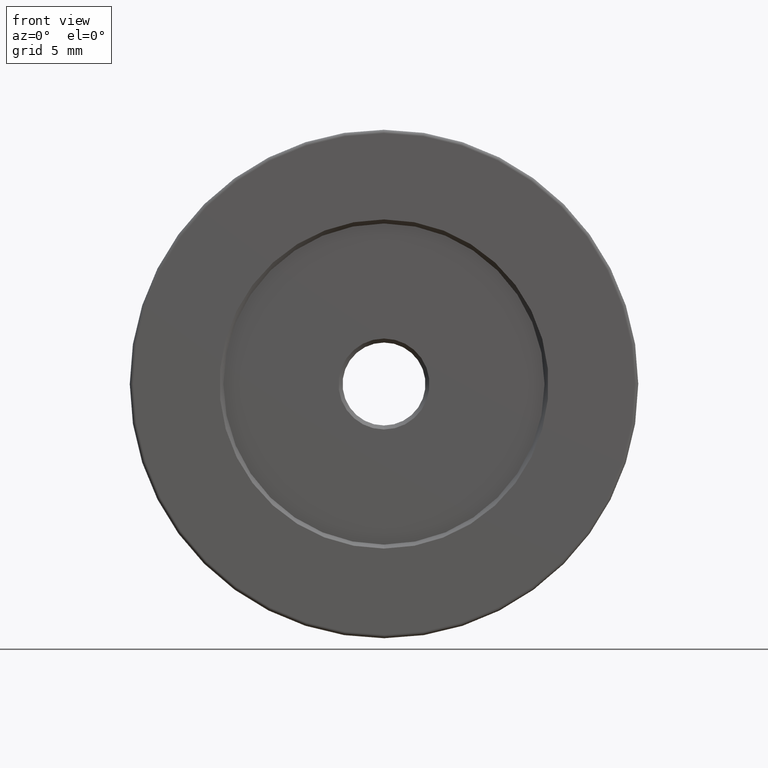
[diagram: clean part render]
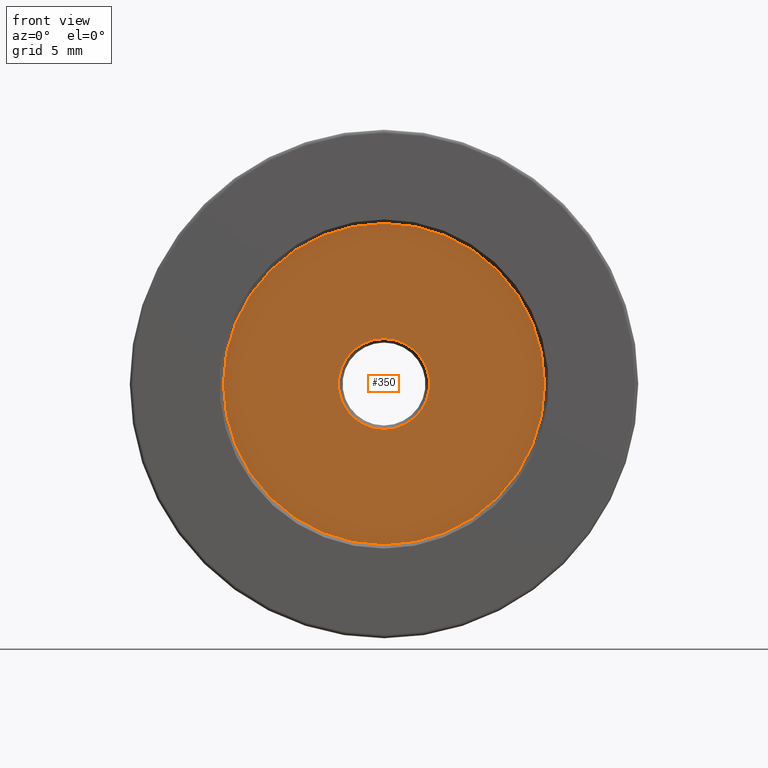
[diagram: same view with one face highlighted and labeled with its STEP entity id]
A machine part, front view. The second image highlights one B-rep face of the part: STEP entity #350.
In plain terms, the highlighted planar face has unit normal (0, -1, 0).
Its self-contained STEP definition (entity closure, byte-faithful):
#17 = AXIS2_PLACEMENT_3D ( 'NONE', #524, #53, #351 ) ;
#52 = AXIS2_PLACEMENT_3D ( 'NONE', #210, #369, #108 ) ;
#53 = DIRECTION ( 'NONE',  ( -0.000000000000000000, 1.000000000000000000, -0.000000000000000000 ) ) ;
#66 = ORIENTED_EDGE ( 'NONE', *, *, #68, .F. ) ;
#68 = EDGE_CURVE ( 'NONE', #526, #204, #223, .T. ) ;
#72 = AXIS2_PLACEMENT_3D ( 'NONE', #307, #561, #606 ) ;
#85 = CIRCLE ( 'NONE', #72, 12.00000000000000355 ) ;
#108 = DIRECTION ( 'NONE',  ( 0.000000000000000000, 0.000000000000000000, 1.000000000000000000 ) ) ;
#111 = CIRCLE ( 'NONE', #474, 3.400000000000007017 ) ;
#116 = CARTESIAN_POINT ( 'NONE',  ( -7.546808913101048510, -7.593595127302728010, 38.00000000000000000 ) ) ;
#118 = ORIENTED_EDGE ( 'NONE', *, *, #436, .T. ) ;
#121 = CARTESIAN_POINT ( 'NONE',  ( -7.546808913101046734, -7.593595127302728010, 50.00000000000000000 ) ) ;
#174 = CIRCLE ( 'NONE', #484, 3.400000000000007017 ) ;
#175 = CARTESIAN_POINT ( 'NONE',  ( -7.546808913101048510, -7.593595127302728010, 34.59999999999999432 ) ) ;
#202 = CARTESIAN_POINT ( 'NONE',  ( -7.546808913101048510, -7.593595127302728010, 41.40000000000000568 ) ) ;
#204 = VERTEX_POINT ( 'NONE', #121 ) ;
#210 = CARTESIAN_POINT ( 'NONE',  ( -7.546808913101048510, -7.593595127302728010, 38.00000000000000000 ) ) ;
#223 = CIRCLE ( 'NONE', #17, 12.00000000000000355 ) ;
#236 = EDGE_LOOP ( 'NONE', ( #66, #381 ) ) ;
#271 = CARTESIAN_POINT ( 'NONE',  ( -7.546808913101048510, -7.593595127302728010, 25.99999999999999645 ) ) ;
#300 = FACE_BOUND ( 'NONE', #496, .T. ) ;
#307 = CARTESIAN_POINT ( 'NONE',  ( -7.546808913101048510, -7.593595127302728010, 38.00000000000000000 ) ) ;
#308 = VERTEX_POINT ( 'NONE', #175 ) ;
#314 = DIRECTION ( 'NONE',  ( 0.000000000000000000, 0.000000000000000000, -1.000000000000000000 ) ) ;
#325 = DIRECTION ( 'NONE',  ( 0.000000000000000000, 0.000000000000000000, -1.000000000000000000 ) ) ;
#350 = ADVANCED_FACE ( 'NONE', ( #300, #489 ), #483, .T. ) ;
#351 = DIRECTION ( 'NONE',  ( 0.000000000000000000, 0.000000000000000000, 1.000000000000000000 ) ) ;
#369 = DIRECTION ( 'NONE',  ( 0.000000000000000000, -1.000000000000000000, 0.000000000000000000 ) ) ;
#381 = ORIENTED_EDGE ( 'NONE', *, *, #488, .F. ) ;
#397 = VERTEX_POINT ( 'NONE', #202 ) ;
#436 = EDGE_CURVE ( 'NONE', #308, #397, #111, .T. ) ;
#468 = DIRECTION ( 'NONE',  ( -0.000000000000000000, 1.000000000000000000, -0.000000000000000000 ) ) ;
#474 = AXIS2_PLACEMENT_3D ( 'NONE', #116, #497, #314 ) ;
#483 = PLANE ( 'NONE',  #52 ) ;
#484 = AXIS2_PLACEMENT_3D ( 'NONE', #598, #468, #325 ) ;
#488 = EDGE_CURVE ( 'NONE', #204, #526, #85, .T. ) ;
#489 = FACE_OUTER_BOUND ( 'NONE', #236, .T. ) ;
#496 = EDGE_LOOP ( 'NONE', ( #118, #515 ) ) ;
#497 = DIRECTION ( 'NONE',  ( -0.000000000000000000, 1.000000000000000000, -0.000000000000000000 ) ) ;
#515 = ORIENTED_EDGE ( 'NONE', *, *, #590, .T. ) ;
#524 = CARTESIAN_POINT ( 'NONE',  ( -7.546808913101048510, -7.593595127302728010, 38.00000000000000000 ) ) ;
#526 = VERTEX_POINT ( 'NONE', #271 ) ;
#561 = DIRECTION ( 'NONE',  ( -0.000000000000000000, 1.000000000000000000, -0.000000000000000000 ) ) ;
#590 = EDGE_CURVE ( 'NONE', #397, #308, #174, .T. ) ;
#598 = CARTESIAN_POINT ( 'NONE',  ( -7.546808913101048510, -7.593595127302728010, 38.00000000000000000 ) ) ;
#606 = DIRECTION ( 'NONE',  ( 0.000000000000000000, 0.000000000000000000, 1.000000000000000000 ) ) ;